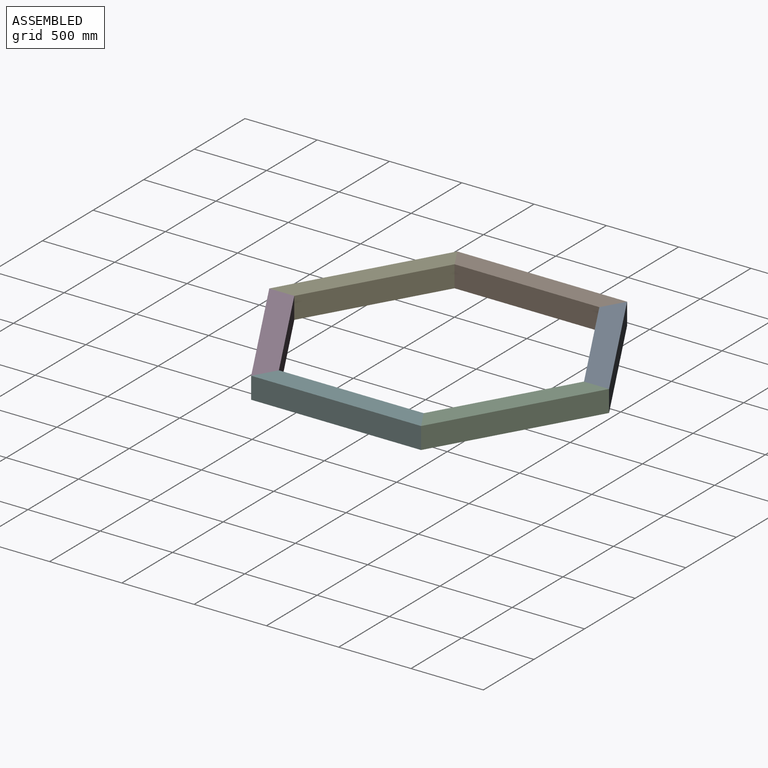
[diagram: assembled view]
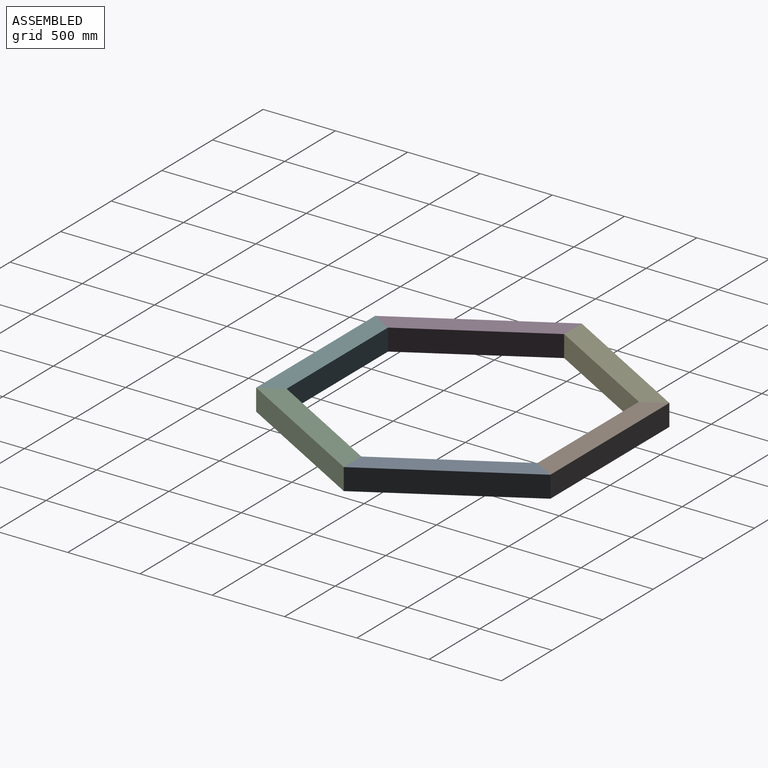
[diagram: assembled view, second angle]
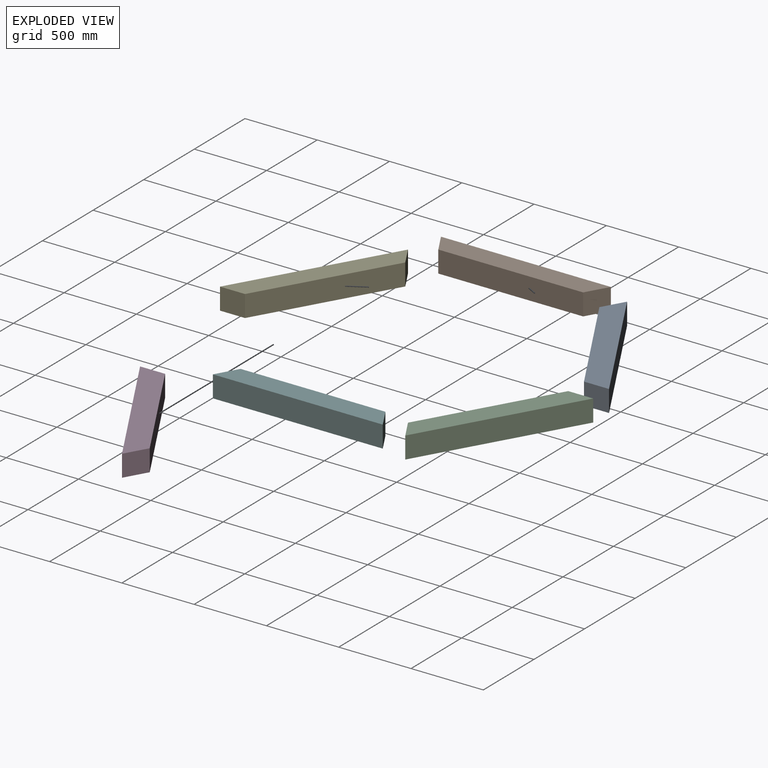
[diagram: exploded view]
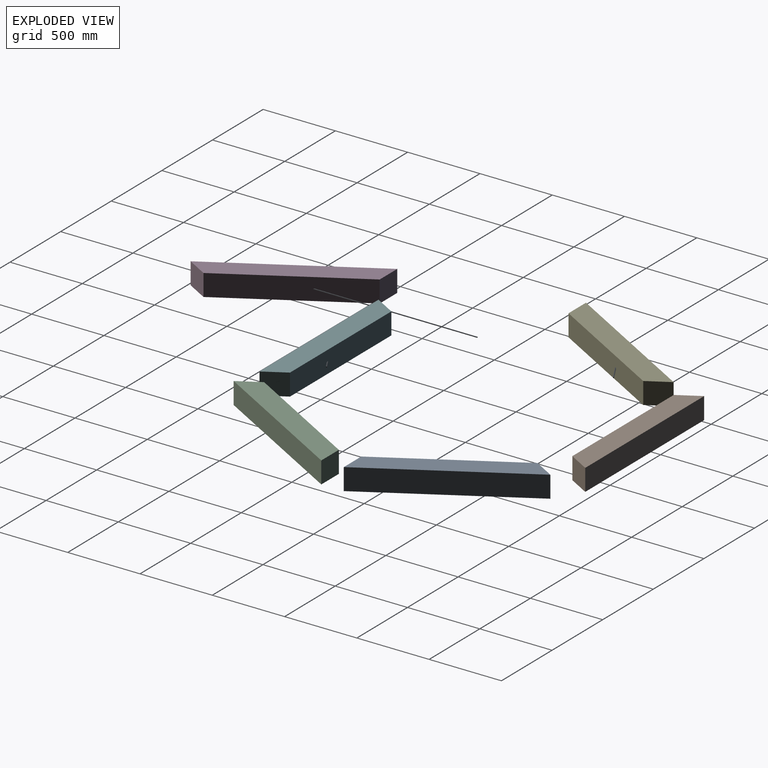
[diagram: exploded view, second angle]
ASSEMBLY  parts=6 mates=5
PART A: 6 faces, bbox 150x150x1175 mm
  f0: plane 1175x150mm, normal (1,0,0), area 163259.6mm2, adj f2,f3,f4,f5
  f1: plane 1175x150mm, normal (-1,0,0), area 163259.6mm2, adj f2,f3,f4,f5
  f2: plane 1001.8x150mm, normal (0,1,0), area 150269.2mm2, adj f0,f1,f4,f5
  f3: plane 1175x150mm, normal (0,-1,0), area 176250mm2, adj f0,f1,f4,f5
  f4: plane 150x150mm, normal (0,0.5,0.87), area 25980.8mm2, adj f0,f1,f2,f3
  f5: plane 150x150mm, normal (0,0.5,-0.87), area 25980.8mm2, adj f0,f1,f2,f3
PART B: same geometry as A
PART C: same geometry as A
PART D: same geometry as A
PART E: same geometry as A
PART F: same geometry as A
PLACE A rot(axis=(0.65,-0.38,0.65),138.6deg) t=(652.9,1338.87,-75)mm
PLACE B rot(axis=(-0.71,0,-0.71),180deg) t=(-163.4,1810.16,-75)mm
PLACE C rot(axis=(0.45,-0.77,0.45),104.5deg) t=(652.9,396.29,-75)mm
PLACE D rot(axis=(-0.45,-0.77,-0.45),104.5deg) t=(-979.7,396.29,-75)mm
PLACE E rot(axis=(-0.65,-0.38,-0.65),138.6deg) t=(-979.7,1338.87,-75)mm
PLACE F rot(axis=(0,-1,0),90deg) t=(-163.4,-75,-75)mm fixed
MATE fastened A.f4 <-> C.f5  axis (0,-1,0) through (925,867.58,-75)mm
MATE fastened D.f4 <-> E.f5  axis (0,1,0) through (-1251.79,867.58,-75)mm
MATE fastened C.f4 <-> F.f5  axis (-0.87,-0.5,0) through (380.8,-75,-75)mm
MATE fastened B.f4 <-> A.f5  axis (0.87,-0.5,0) through (380.8,1810.16,-75)mm
MATE fastened E.f4 <-> B.f5  axis (0.87,0.5,0) through (-707.6,1810.16,-75)mm
